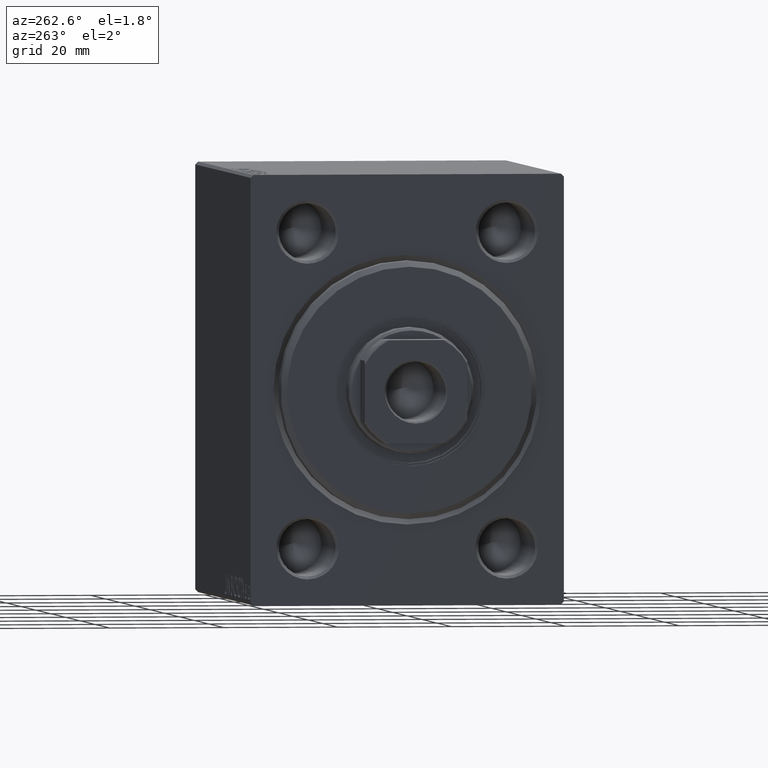
[diagram: clean part render]
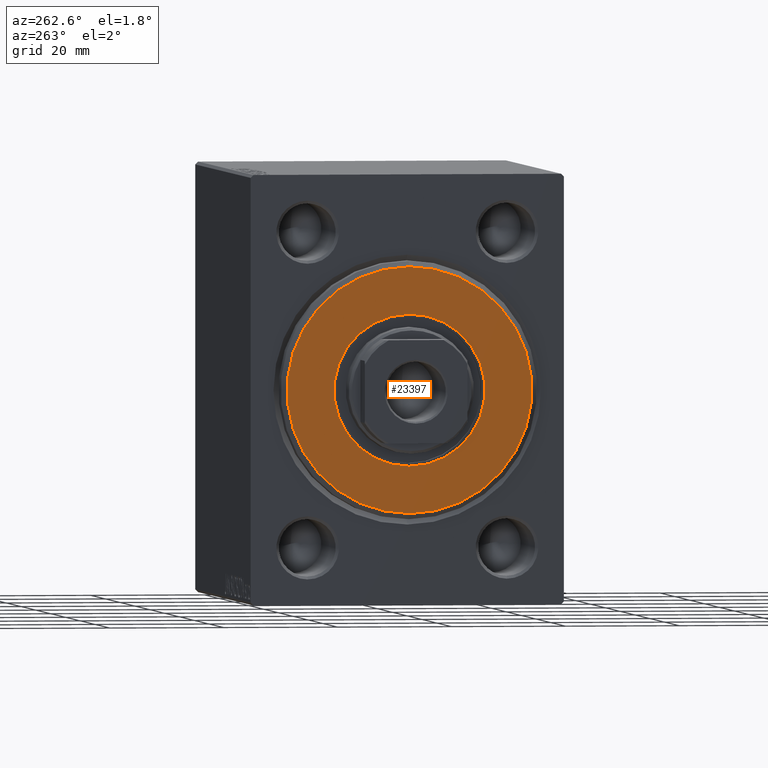
[diagram: same view with one face highlighted and labeled with its STEP entity id]
A machine part, auxiliary view. The second image highlights one B-rep face of the part: STEP entity #23397.
In plain terms, the highlighted planar face has unit normal (-1, 0, 0).
Its self-contained STEP definition (entity closure, byte-faithful):
#94 = ORIENTED_EDGE ( 'NONE', *, *, #40682, .F. ) ;
#221 = CARTESIAN_POINT ( 'NONE',  ( 3.000000000000000000, 0.000000000000000000, 0.000000000000000000 ) ) ;
#1077 = AXIS2_PLACEMENT_3D ( 'NONE', #17194, #3542, #23921 ) ;
#1212 = DIRECTION ( 'NONE',  ( 1.000000000000000000, -0.000000000000000000, 0.000000000000000000 ) ) ;
#1983 = DIRECTION ( 'NONE',  ( 1.000000000000000000, 0.000000000000000000, 0.000000000000000000 ) ) ;
#3542 = DIRECTION ( 'NONE',  ( 1.000000000000000000, -0.000000000000000000, 0.000000000000000000 ) ) ;
#6536 = CARTESIAN_POINT ( 'NONE',  ( 3.000000000000000000, 1.622657008870243277E-15, 13.25000000000000178 ) ) ;
#7477 = CARTESIAN_POINT ( 'NONE',  ( 3.000000000000000000, 0.000000000000000000, 0.000000000000000000 ) ) ;
#7736 = EDGE_CURVE ( 'NONE', #15403, #30432, #20394, .T. ) ;
#8019 = AXIS2_PLACEMENT_3D ( 'NONE', #39138, #11537, #25229 ) ;
#8852 = AXIS2_PLACEMENT_3D ( 'NONE', #7477, #1212, #37993 ) ;
#9734 = ORIENTED_EDGE ( 'NONE', *, *, #32666, .F. ) ;
#10946 = DIRECTION ( 'NONE',  ( 0.000000000000000000, 0.000000000000000000, -1.000000000000000000 ) ) ;
#11537 = DIRECTION ( 'NONE',  ( 1.000000000000000000, -0.000000000000000000, 0.000000000000000000 ) ) ;
#11546 = CARTESIAN_POINT ( 'NONE',  ( 3.000000000000000000, 2.694222958124177598E-15, -21.50000000000000355 ) ) ;
#12443 = CIRCLE ( 'NONE', #8852, 21.50000000000000355 ) ;
#12577 = CIRCLE ( 'NONE', #14013, 13.25000000000000178 ) ;
#13321 = ORIENTED_EDGE ( 'NONE', *, *, #7736, .T. ) ;
#14013 = AXIS2_PLACEMENT_3D ( 'NONE', #14964, #1983, #22569 ) ;
#14964 = CARTESIAN_POINT ( 'NONE',  ( 3.000000000000000000, 0.000000000000000000, 0.000000000000000000 ) ) ;
#15124 = FACE_OUTER_BOUND ( 'NONE', #40150, .T. ) ;
#15403 = VERTEX_POINT ( 'NONE', #40617 ) ;
#17194 = CARTESIAN_POINT ( 'NONE',  ( 3.000000000000000000, 0.000000000000000000, 0.000000000000000000 ) ) ;
#18908 = CIRCLE ( 'NONE', #20347, 13.25000000000000178 ) ;
#20347 = AXIS2_PLACEMENT_3D ( 'NONE', #221, #37675, #10946 ) ;
#20394 = CIRCLE ( 'NONE', #1077, 21.50000000000000355 ) ;
#22019 = CARTESIAN_POINT ( 'NONE',  ( 3.000000000000000000, 0.000000000000000000, -13.25000000000000178 ) ) ;
#22569 = DIRECTION ( 'NONE',  ( 0.000000000000000000, 0.000000000000000000, -1.000000000000000000 ) ) ;
#22912 = VERTEX_POINT ( 'NONE', #6536 ) ;
#23397 = ADVANCED_FACE ( 'NONE', ( #15124, #32855 ), #39362, .T. ) ;
#23921 = DIRECTION ( 'NONE',  ( 0.000000000000000000, 0.000000000000000000, -1.000000000000000000 ) ) ;
#25229 = DIRECTION ( 'NONE',  ( 0.000000000000000000, 0.000000000000000000, -1.000000000000000000 ) ) ;
#28718 = VERTEX_POINT ( 'NONE', #22019 ) ;
#30432 = VERTEX_POINT ( 'NONE', #11546 ) ;
#31851 = EDGE_CURVE ( 'NONE', #30432, #15403, #12443, .T. ) ;
#32666 = EDGE_CURVE ( 'NONE', #22912, #28718, #18908, .T. ) ;
#32855 = FACE_BOUND ( 'NONE', #42231, .T. ) ;
#36709 = ORIENTED_EDGE ( 'NONE', *, *, #31851, .T. ) ;
#37675 = DIRECTION ( 'NONE',  ( 1.000000000000000000, 0.000000000000000000, 0.000000000000000000 ) ) ;
#37993 = DIRECTION ( 'NONE',  ( 0.000000000000000000, 0.000000000000000000, -1.000000000000000000 ) ) ;
#39138 = CARTESIAN_POINT ( 'NONE',  ( 3.000000000000000000, 0.000000000000000000, 0.000000000000000000 ) ) ;
#39362 = PLANE ( 'NONE',  #8019 ) ;
#40150 = EDGE_LOOP ( 'NONE', ( #13321, #36709 ) ) ;
#40617 = CARTESIAN_POINT ( 'NONE',  ( 3.000000000000000000, 0.000000000000000000, 21.50000000000000355 ) ) ;
#40682 = EDGE_CURVE ( 'NONE', #28718, #22912, #12577, .T. ) ;
#42231 = EDGE_LOOP ( 'NONE', ( #94, #9734 ) ) ;